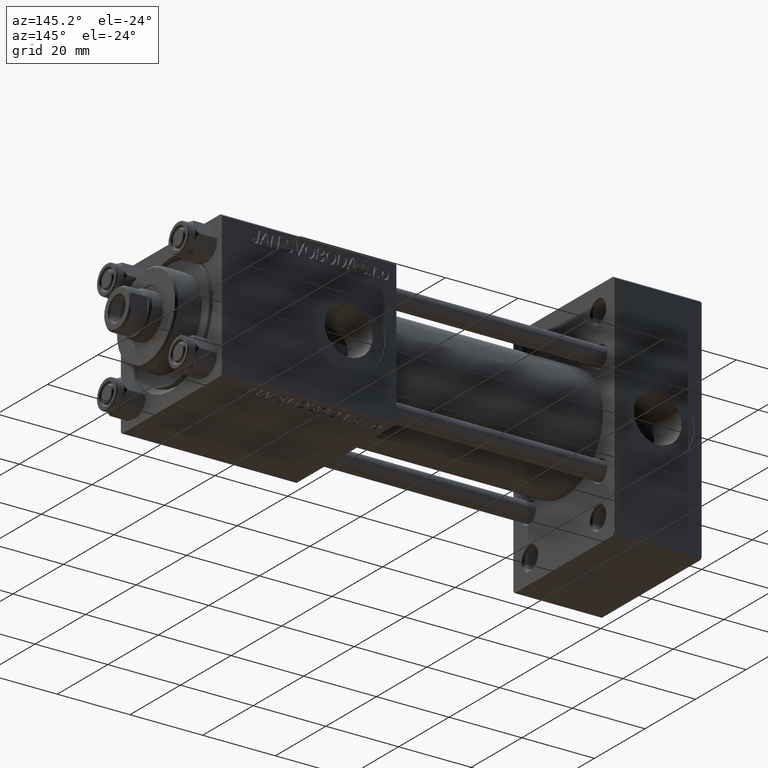
[diagram: clean part render]
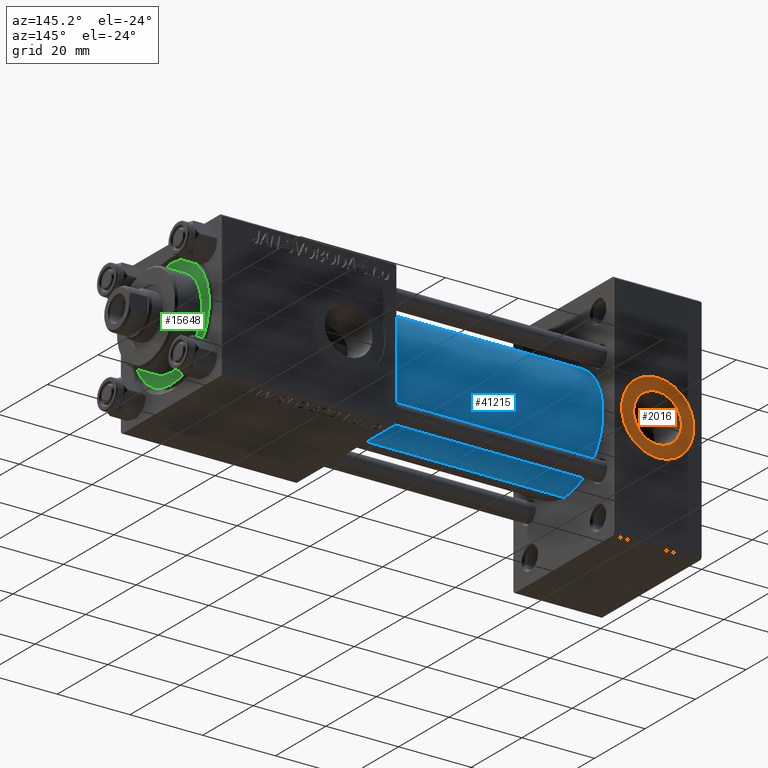
[diagram: same view with three faces highlighted in distinct colors, each labeled with its STEP entity id]
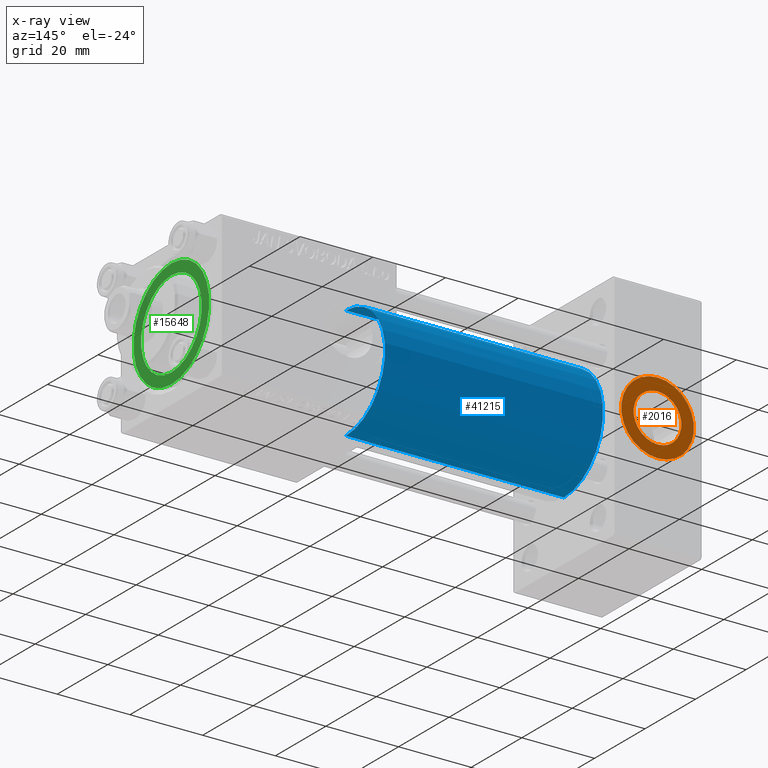
[diagram: x-ray of the same camera — body ghosted, the three highlighted faces saturated]
A machine part, auxiliary view with three faces highlighted in distinct colors.
The next image is the same camera in x-ray (body ghosted, the three faces saturated) — at least one of them is partly hidden behind the body in this view.
Their STEP definitions:

[orange] entity #2016 — the highlighted planar face has unit normal (0, 1, 0).
#1414 = PLANE ( 'NONE',  #24607 ) ;
#1540 = CARTESIAN_POINT ( 'NONE',  ( 12.00000000000000000, 19.79999999999999716, 0.000000000000000000 ) ) ;
#1954 = CARTESIAN_POINT ( 'NONE',  ( 12.00000000000000000, 19.79999999999999716, -6.579999999999998295 ) ) ;
#2016 = ADVANCED_FACE ( 'NONE', ( #24149, #47119 ), #1414, .T. ) ;
#4892 = ORIENTED_EDGE ( 'NONE', *, *, #13410, .T. ) ;
#5436 = DIRECTION ( 'NONE',  ( 0.000000000000000000, 1.000000000000000000, 0.000000000000000000 ) ) ;
#8509 = ORIENTED_EDGE ( 'NONE', *, *, #41830, .F. ) ;
#8811 = EDGE_CURVE ( 'NONE', #32957, #9511, #13530, .T. ) ;
#9511 = VERTEX_POINT ( 'NONE', #1954 ) ;
#9546 = AXIS2_PLACEMENT_3D ( 'NONE', #28110, #32644, #32890 ) ;
#9598 = CARTESIAN_POINT ( 'NONE',  ( 12.00000000000000000, 19.79999999999999716, 0.000000000000000000 ) ) ;
#9769 = DIRECTION ( 'NONE',  ( 0.000000000000000000, 1.000000000000000000, 0.000000000000000000 ) ) ;
#13015 = DIRECTION ( 'NONE',  ( 0.000000000000000000, 0.000000000000000000, 1.000000000000000000 ) ) ;
#13035 = CARTESIAN_POINT ( 'NONE',  ( 12.00000000000000178, 19.79999999999999716, -10.00000000000000000 ) ) ;
#13128 = DIRECTION ( 'NONE',  ( 0.000000000000000000, 0.000000000000000000, 1.000000000000000000 ) ) ;
#13410 = EDGE_CURVE ( 'NONE', #33175, #41533, #18429, .T. ) ;
#13530 = CIRCLE ( 'NONE', #9546, 6.579999999999998295 ) ;
#13663 = DIRECTION ( 'NONE',  ( 0.000000000000000000, 0.000000000000000000, 1.000000000000000000 ) ) ;
#14423 = AXIS2_PLACEMENT_3D ( 'NONE', #1540, #48236, #13663 ) ;
#15166 = CARTESIAN_POINT ( 'NONE',  ( 12.00000000000000000, 19.79999999999999716, 10.00000000000000000 ) ) ;
#15768 = EDGE_CURVE ( 'NONE', #41533, #33175, #16076, .T. ) ;
#16076 = CIRCLE ( 'NONE', #45912, 10.00000000000000000 ) ;
#16411 = DIRECTION ( 'NONE',  ( 0.000000000000000000, 1.000000000000000000, 0.000000000000000000 ) ) ;
#17028 = ORIENTED_EDGE ( 'NONE', *, *, #15768, .T. ) ;
#18429 = CIRCLE ( 'NONE', #14423, 10.00000000000000000 ) ;
#19569 = ORIENTED_EDGE ( 'NONE', *, *, #8811, .F. ) ;
#24018 = EDGE_LOOP ( 'NONE', ( #17028, #4892 ) ) ;
#24149 = FACE_BOUND ( 'NONE', #27090, .T. ) ;
#24607 = AXIS2_PLACEMENT_3D ( 'NONE', #48115, #9769, #24917 ) ;
#24917 = DIRECTION ( 'NONE',  ( 0.000000000000000000, -0.000000000000000000, 1.000000000000000000 ) ) ;
#27090 = EDGE_LOOP ( 'NONE', ( #19569, #8509 ) ) ;
#28110 = CARTESIAN_POINT ( 'NONE',  ( 12.00000000000000000, 19.79999999999999716, 0.000000000000000000 ) ) ;
#29486 = CARTESIAN_POINT ( 'NONE',  ( 12.00000000000000000, 19.79999999999999716, 6.579999999999998295 ) ) ;
#32644 = DIRECTION ( 'NONE',  ( 0.000000000000000000, 1.000000000000000000, 0.000000000000000000 ) ) ;
#32890 = DIRECTION ( 'NONE',  ( 0.000000000000000000, 0.000000000000000000, 1.000000000000000000 ) ) ;
#32957 = VERTEX_POINT ( 'NONE', #29486 ) ;
#33175 = VERTEX_POINT ( 'NONE', #13035 ) ;
#33243 = CIRCLE ( 'NONE', #36447, 6.579999999999998295 ) ;
#36447 = AXIS2_PLACEMENT_3D ( 'NONE', #43292, #5436, #13015 ) ;
#41533 = VERTEX_POINT ( 'NONE', #15166 ) ;
#41830 = EDGE_CURVE ( 'NONE', #9511, #32957, #33243, .T. ) ;
#43292 = CARTESIAN_POINT ( 'NONE',  ( 12.00000000000000000, 19.79999999999999716, 0.000000000000000000 ) ) ;
#45912 = AXIS2_PLACEMENT_3D ( 'NONE', #9598, #16411, #13128 ) ;
#47119 = FACE_OUTER_BOUND ( 'NONE', #24018, .T. ) ;
#48115 = CARTESIAN_POINT ( 'NONE',  ( 12.00000000000000000, 19.79999999999999716, 0.000000000000000000 ) ) ;
#48236 = DIRECTION ( 'NONE',  ( 0.000000000000000000, 1.000000000000000000, 0.000000000000000000 ) ) ;

[blue] entity #41215 — the highlighted cylindrical surface (partial cylindrical patch) has radius 15.5 mm, axis along (-1, -0, -0).
#466 = CARTESIAN_POINT ( 'NONE',  ( 24.00000000000000000, -7.038826752868131828E-16, -15.50000000000000000 ) ) ;
#589 = ORIENTED_EDGE ( 'NONE', *, *, #9893, .F. ) ;
#1420 = EDGE_LOOP ( 'NONE', ( #7758, #14999, #32043, #589 ) ) ;
#4546 = DIRECTION ( 'NONE',  ( -1.000000000000000000, -0.000000000000000000, -0.000000000000000000 ) ) ;
#7758 = ORIENTED_EDGE ( 'NONE', *, *, #28139, .F. ) ;
#9893 = EDGE_CURVE ( 'NONE', #17569, #15387, #35372, .T. ) ;
#10049 = DIRECTION ( 'NONE',  ( 1.000000000000000000, 0.000000000000000000, 0.000000000000000000 ) ) ;
#10738 = CARTESIAN_POINT ( 'NONE',  ( 24.00000000000000000, -2.602085213965210642E-15, 0.000000000000000000 ) ) ;
#10951 = VERTEX_POINT ( 'NONE', #15373 ) ;
#11087 = EDGE_CURVE ( 'NONE', #49853, #15387, #34587, .T. ) ;
#13752 = CYLINDRICAL_SURFACE ( 'NONE', #40482, 15.50000000000000000 ) ;
#14999 = ORIENTED_EDGE ( 'NONE', *, *, #44192, .T. ) ;
#15373 = CARTESIAN_POINT ( 'NONE',  ( 83.99999999999998579, -7.038826752868131828E-16, -15.50000000000000000 ) ) ;
#15387 = VERTEX_POINT ( 'NONE', #42240 ) ;
#15931 = DIRECTION ( 'NONE',  ( -1.000000000000000000, -0.000000000000000000, -0.000000000000000000 ) ) ;
#16617 = CARTESIAN_POINT ( 'NONE',  ( 83.99999999999998579, -2.602085213965210642E-15, 0.000000000000000000 ) ) ;
#17569 = VERTEX_POINT ( 'NONE', #26256 ) ;
#18804 = DIRECTION ( 'NONE',  ( 0.000000000000000000, 0.000000000000000000, 1.000000000000000000 ) ) ;
#19214 = LINE ( 'NONE', #34621, #44467 ) ;
#20888 = AXIS2_PLACEMENT_3D ( 'NONE', #10738, #22579, #18804 ) ;
#21084 = FACE_OUTER_BOUND ( 'NONE', #1420, .T. ) ;
#21634 = AXIS2_PLACEMENT_3D ( 'NONE', #16617, #10049, #32274 ) ;
#22579 = DIRECTION ( 'NONE',  ( 1.000000000000000000, 0.000000000000000000, 0.000000000000000000 ) ) ;
#24854 = CIRCLE ( 'NONE', #21634, 15.50000000000000000 ) ;
#25128 = CARTESIAN_POINT ( 'NONE',  ( 83.99999999999998579, -2.602085213965210642E-15, 0.000000000000000000 ) ) ;
#26256 = CARTESIAN_POINT ( 'NONE',  ( 83.99999999999998579, -2.602085213965210642E-15, 15.50000000000000000 ) ) ;
#26821 = CARTESIAN_POINT ( 'NONE',  ( 83.99999999999998579, -2.602085213965210642E-15, 15.50000000000000000 ) ) ;
#28139 = EDGE_CURVE ( 'NONE', #10951, #17569, #24854, .T. ) ;
#32043 = ORIENTED_EDGE ( 'NONE', *, *, #11087, .T. ) ;
#32274 = DIRECTION ( 'NONE',  ( 0.000000000000000000, 0.000000000000000000, -1.000000000000000000 ) ) ;
#34587 = CIRCLE ( 'NONE', #20888, 15.50000000000000000 ) ;
#34621 = CARTESIAN_POINT ( 'NONE',  ( 83.99999999999998579, -7.038826752868131828E-16, -15.50000000000000000 ) ) ;
#35372 = LINE ( 'NONE', #26821, #42598 ) ;
#36481 = DIRECTION ( 'NONE',  ( -1.000000000000000000, -0.000000000000000000, -0.000000000000000000 ) ) ;
#37462 = DIRECTION ( 'NONE',  ( 0.000000000000000000, 0.000000000000000000, 1.000000000000000000 ) ) ;
#40482 = AXIS2_PLACEMENT_3D ( 'NONE', #25128, #36481, #37462 ) ;
#41215 = ADVANCED_FACE ( 'NONE', ( #21084 ), #13752, .T. ) ;
#42240 = CARTESIAN_POINT ( 'NONE',  ( 24.00000000000000000, -2.602085213965210642E-15, 15.50000000000000000 ) ) ;
#42598 = VECTOR ( 'NONE', #15931, 1000.000000000000000 ) ;
#44192 = EDGE_CURVE ( 'NONE', #10951, #49853, #19214, .T. ) ;
#44467 = VECTOR ( 'NONE', #4546, 1000.000000000000000 ) ;
#49853 = VERTEX_POINT ( 'NONE', #466 ) ;

[green] entity #15648 — the highlighted planar face has unit normal (1, 0, 0).
#1774 = DIRECTION ( 'NONE',  ( 0.000000000000000000, 0.000000000000000000, 1.000000000000000000 ) ) ;
#2312 = AXIS2_PLACEMENT_3D ( 'NONE', #4161, #30440, #20074 ) ;
#3586 = VERTEX_POINT ( 'NONE', #19695 ) ;
#4161 = CARTESIAN_POINT ( 'NONE',  ( 0.000000000000000000, 0.000000000000000000, 28.69999999999999929 ) ) ;
#5254 = EDGE_CURVE ( 'NONE', #46016, #40298, #7804, .T. ) ;
#6605 = AXIS2_PLACEMENT_3D ( 'NONE', #29052, #1774, #24505 ) ;
#7152 = CIRCLE ( 'NONE', #2312, 12.00000000000000178 ) ;
#7351 = PLANE ( 'NONE',  #18506 ) ;
#7804 = CIRCLE ( 'NONE', #9406, 15.00000000000000000 ) ;
#9406 = AXIS2_PLACEMENT_3D ( 'NONE', #29926, #45062, #40786 ) ;
#14217 = EDGE_CURVE ( 'NONE', #25161, #3586, #7152, .T. ) ;
#14670 = CARTESIAN_POINT ( 'NONE',  ( -12.00000000000000178, 0.000000000000000000, 28.69999999999999929 ) ) ;
#15648 = ADVANCED_FACE ( 'NONE', ( #15911, #49742 ), #7351, .T. ) ;
#15911 = FACE_BOUND ( 'NONE', #47112, .T. ) ;
#17649 = EDGE_LOOP ( 'NONE', ( #35457, #49669 ) ) ;
#18506 = AXIS2_PLACEMENT_3D ( 'NONE', #38883, #45706, #38386 ) ;
#19678 = CARTESIAN_POINT ( 'NONE',  ( -15.00000000000000000, 0.000000000000000000, 28.69999999999999929 ) ) ;
#19695 = CARTESIAN_POINT ( 'NONE',  ( 12.00000000000000178, 1.469576158976824144E-15, 28.69999999999999929 ) ) ;
#20074 = DIRECTION ( 'NONE',  ( 1.000000000000000000, 0.000000000000000000, 0.000000000000000000 ) ) ;
#21117 = EDGE_CURVE ( 'NONE', #3586, #25161, #44480, .T. ) ;
#23863 = DIRECTION ( 'NONE',  ( 1.000000000000000000, 0.000000000000000000, 0.000000000000000000 ) ) ;
#24505 = DIRECTION ( 'NONE',  ( 1.000000000000000000, 0.000000000000000000, 0.000000000000000000 ) ) ;
#25161 = VERTEX_POINT ( 'NONE', #14670 ) ;
#26771 = ORIENTED_EDGE ( 'NONE', *, *, #21117, .F. ) ;
#26975 = ORIENTED_EDGE ( 'NONE', *, *, #14217, .F. ) ;
#29052 = CARTESIAN_POINT ( 'NONE',  ( 0.000000000000000000, 0.000000000000000000, 28.69999999999999929 ) ) ;
#29175 = AXIS2_PLACEMENT_3D ( 'NONE', #43289, #47085, #23863 ) ;
#29926 = CARTESIAN_POINT ( 'NONE',  ( 0.000000000000000000, 0.000000000000000000, 28.69999999999999929 ) ) ;
#30440 = DIRECTION ( 'NONE',  ( 0.000000000000000000, 0.000000000000000000, 1.000000000000000000 ) ) ;
#33995 = CIRCLE ( 'NONE', #29175, 15.00000000000000000 ) ;
#35457 = ORIENTED_EDGE ( 'NONE', *, *, #5254, .T. ) ;
#37467 = CARTESIAN_POINT ( 'NONE',  ( 15.00000000000000000, 1.836970198721029589E-15, 28.69999999999999929 ) ) ;
#38386 = DIRECTION ( 'NONE',  ( 1.000000000000000000, 0.000000000000000000, -0.000000000000000000 ) ) ;
#38883 = CARTESIAN_POINT ( 'NONE',  ( 0.000000000000000000, 0.000000000000000000, 28.69999999999999929 ) ) ;
#40158 = EDGE_CURVE ( 'NONE', #40298, #46016, #33995, .T. ) ;
#40298 = VERTEX_POINT ( 'NONE', #37467 ) ;
#40786 = DIRECTION ( 'NONE',  ( 1.000000000000000000, 0.000000000000000000, 0.000000000000000000 ) ) ;
#43289 = CARTESIAN_POINT ( 'NONE',  ( 0.000000000000000000, 0.000000000000000000, 28.69999999999999929 ) ) ;
#44480 = CIRCLE ( 'NONE', #6605, 12.00000000000000178 ) ;
#45062 = DIRECTION ( 'NONE',  ( 0.000000000000000000, 0.000000000000000000, 1.000000000000000000 ) ) ;
#45706 = DIRECTION ( 'NONE',  ( 0.000000000000000000, 0.000000000000000000, 1.000000000000000000 ) ) ;
#46016 = VERTEX_POINT ( 'NONE', #19678 ) ;
#47085 = DIRECTION ( 'NONE',  ( 0.000000000000000000, 0.000000000000000000, 1.000000000000000000 ) ) ;
#47112 = EDGE_LOOP ( 'NONE', ( #26975, #26771 ) ) ;
#49669 = ORIENTED_EDGE ( 'NONE', *, *, #40158, .T. ) ;
#49742 = FACE_OUTER_BOUND ( 'NONE', #17649, .T. ) ;